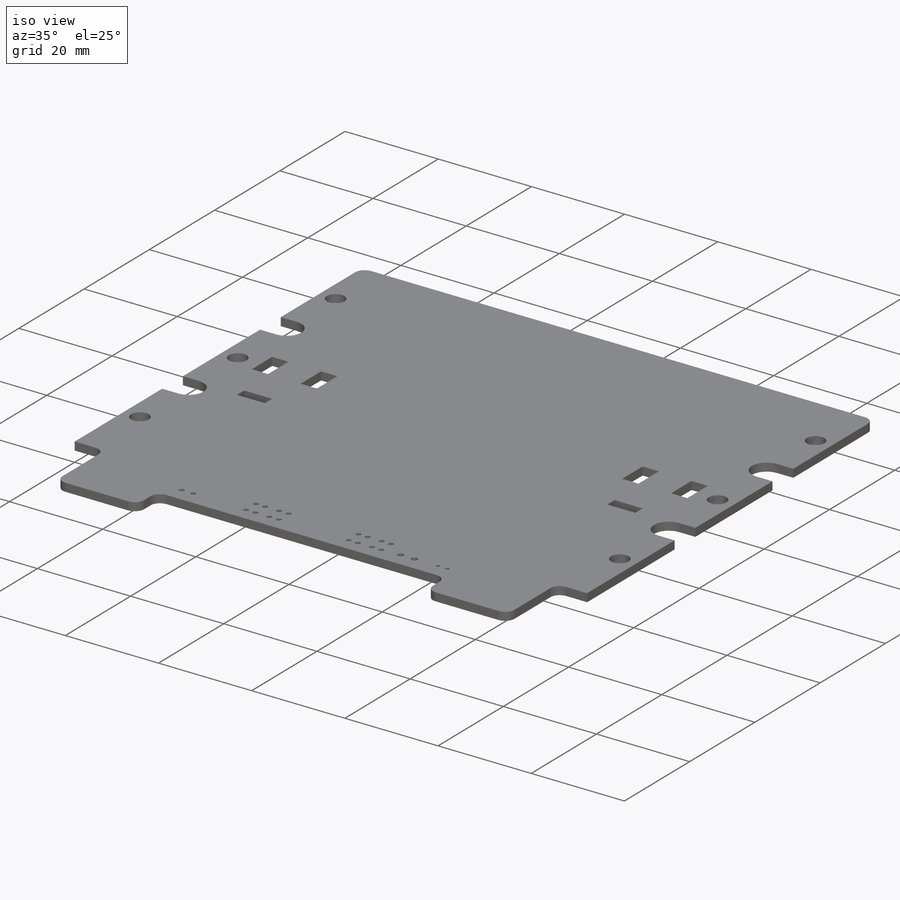
[diagram: iso view]
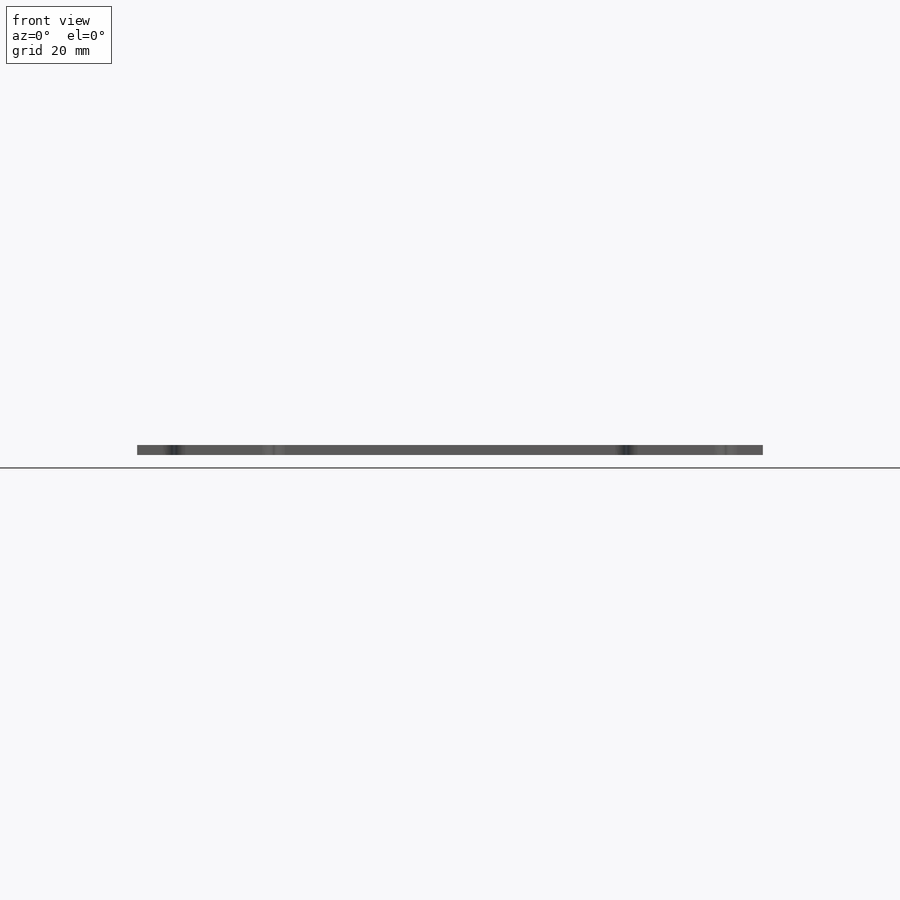
[diagram: front view]
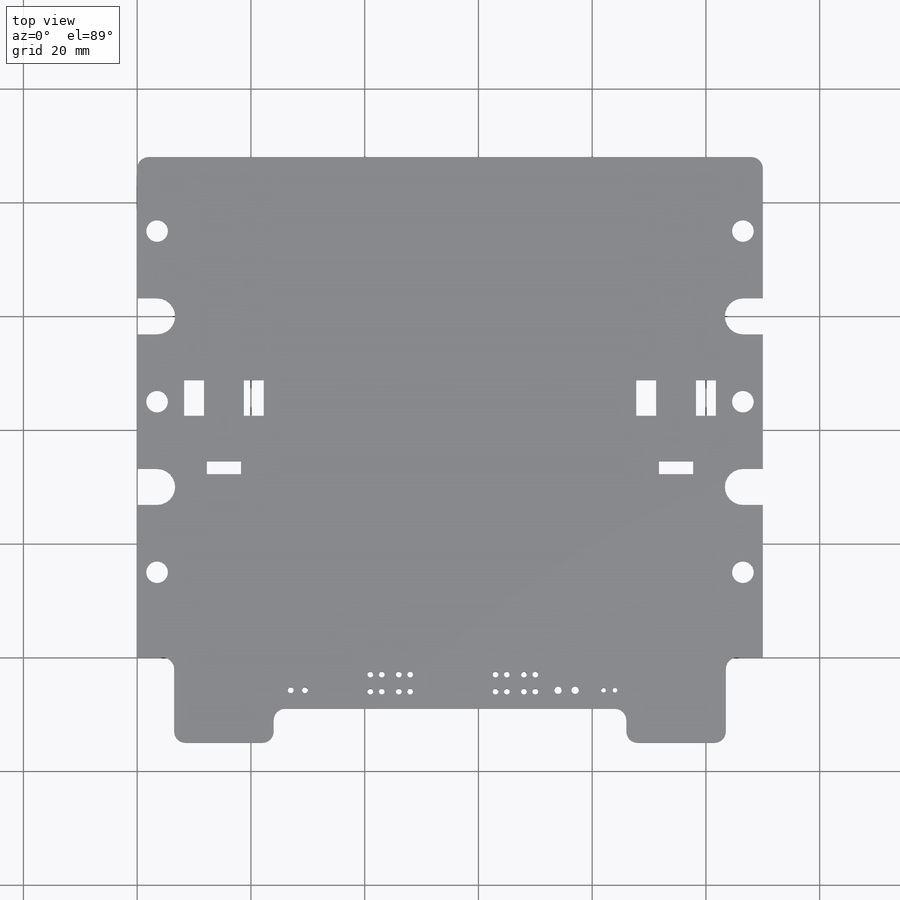
[diagram: top view]
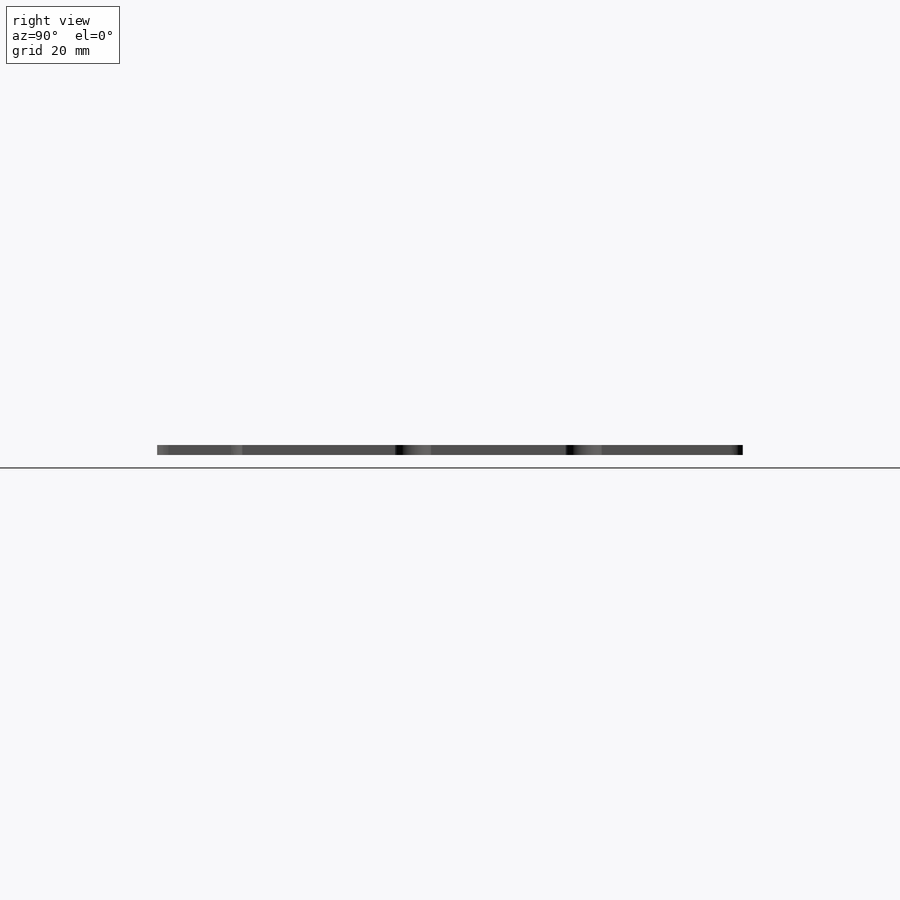
[diagram: right view]
SOLIDWORKS PART (.sldprt)
format: sldprt  version: not decoded by parser v0  size: 421,888 bytes
history: native  units: mm
features: sketch x7, cut_extrude x6, material x1, extrude x1, plane x1 + 1 further entry (+12 scaffold rows collapsed)
feature tree (29):
  scaffold x12  (default folders/planes/origin — collapsed)
  material  "Material <not specified>"
  "Annotations"  RD1=3.5mm RD2=6.35mm RD3=6.35mm
  sketch  "Sketch1"  dims[c1.D1=6.0mm c1.D2=14.25mm c2.D1=~8.017542mm c2.D2=14.25mm c3.D1=~3.800875mm c4.D1=45.0deg c5.D1=~7.760387mm c6.D1=45.0deg c7.D1=~2.617798mm c8.D1=135.0deg c9.D1=~0.608511mm]
  extrude  "FR4"  Depth=1.7526mm
  plane  "center-of-slot"
  sketch  "Sketch6"  dims[c1.D1=6.0mm c1.D2=14.25mm c2.D1=6.0mm c2.D2=6.05mm c2.D3=~4.385132mm c3.D2=~7.056675mm]
  cut_extrude  "fiber-transceiver-slots"  [1 undecoded]
  sketch  "Sketch7"  dims[c1.D1=~5.428396mm c2.D1=2.0 c2.D2=5.0]
  cut_extrude  "mounting-holes"  [1 undecoded]
  sketch  "Sketch8"  dims[D1=6.35mm]
  cut_extrude  "#6 socket head screw hole"  [1 undecoded]
  sketch  "Sketch9"  dims[D1=6.35mm]
  cut_extrude  "removal-of-thin-section"  [1 undecoded]
  sketch  "Sketch10"  dims[D1=~10.098171mm]
  cut_extrude  "power-connections"  [1 undecoded]
  sketch  "Sketch11"  dims[c1.D1=~9.563665mm c2.D1=2.0 c2.D2=2.0]
  cut_extrude  "trg_clk-jtag"  [1 undecoded]
decode coverage: 8 of 14 modeling features carry decoded parameters; 1 rows unclassified (native names shown)
note: ~ marks probable driven/reference dimensions
note: 6 parameter values undecoded
summary: no parameter record found for 6 features
note: suppression state not decoded; provenance and decode notes live in map.json
